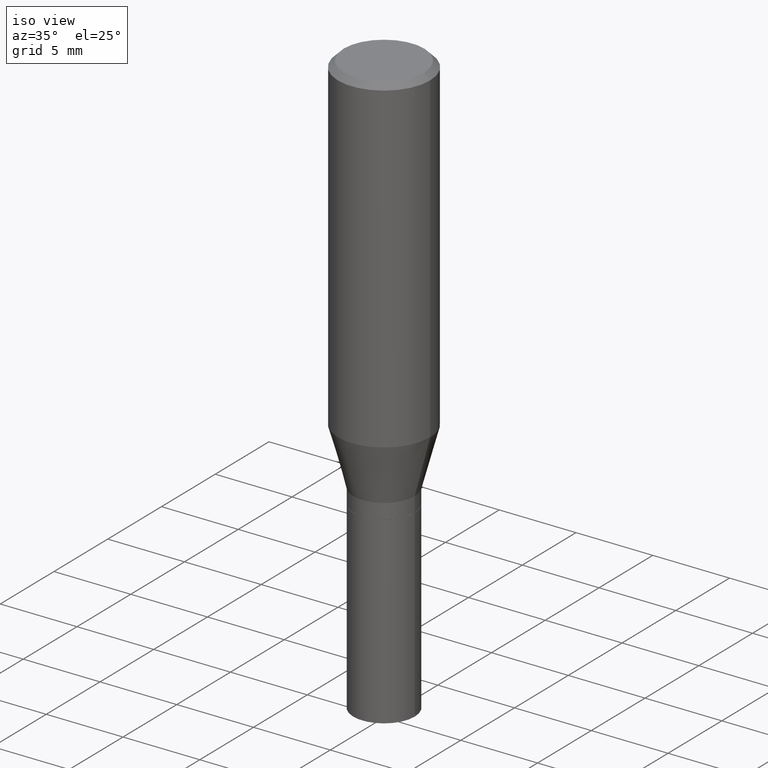
[diagram: clean part render]
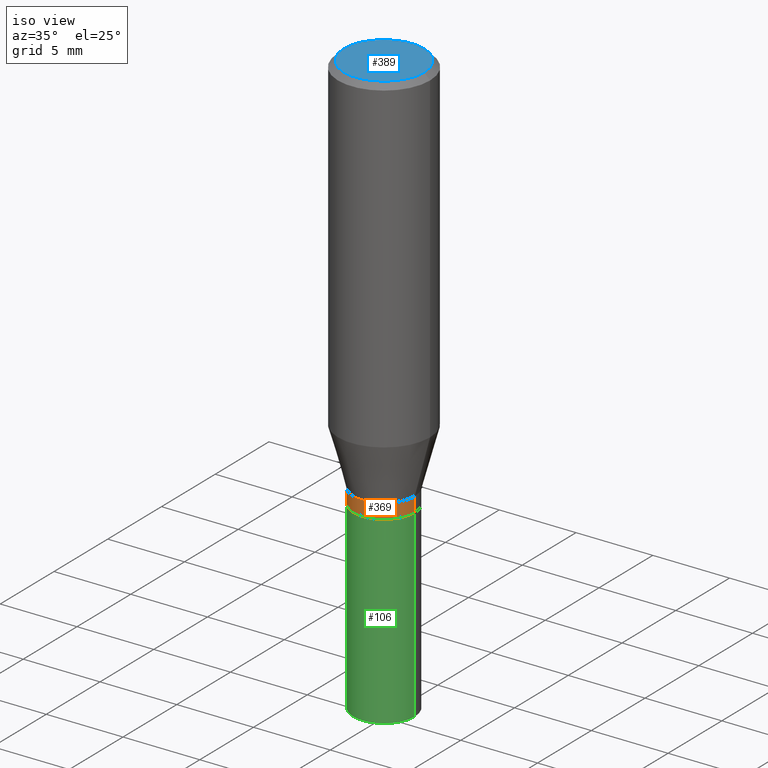
[diagram: same view with three faces highlighted in distinct colors, each labeled with its STEP entity id]
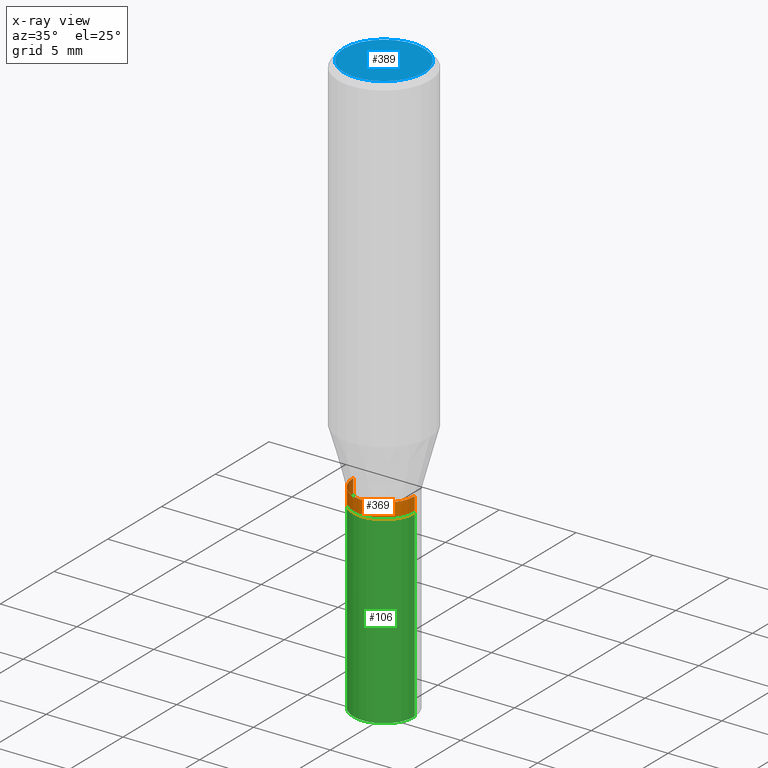
[diagram: x-ray of the same camera — body ghosted, the three highlighted faces saturated]
A machine part, iso view with three faces highlighted in distinct colors.
The next image is the same camera in x-ray (body ghosted, the three faces saturated) — at least one of them is partly hidden behind the body in this view.
Their STEP definitions:

[orange] entity #369 — the highlighted cylindrical surface (partial cylindrical patch) has radius 2.0003 mm, axis along (-0, 0, 1).
#10 = EDGE_CURVE ( 'NONE', #69, #327, #122, .T. ) ;
#38 = EDGE_CURVE ( 'NONE', #123, #271, #232, .T. ) ;
#49 = EDGE_LOOP ( 'NONE', ( #350, #160, #425, #60 ) ) ;
#55 = CARTESIAN_POINT ( 'NONE',  ( 2.511741010832753769E-29, -3.586100483125795415E-15, -1.027100000000000124 ) ) ;
#60 = ORIENTED_EDGE ( 'NONE', *, *, #78, .F. ) ;
#69 = VERTEX_POINT ( 'NONE', #94 ) ;
#76 = DIRECTION ( 'NONE',  ( -2.445468806185136597E-29, 3.491481338843145583E-15, 1.000000000000000000 ) ) ;
#78 = EDGE_CURVE ( 'NONE', #271, #327, #263, .T. ) ;
#94 = CARTESIAN_POINT ( 'NONE',  ( 0.07875000000000018097, -4.136008793993590338E-15, -1.027100000000000124 ) ) ;
#110 = CARTESIAN_POINT ( 'NONE',  ( -0.07875000000000016709, -2.497350516807997556E-15, -0.9889999999999999902 ) ) ;
#122 = LINE ( 'NONE', #296, #458 ) ;
#123 = VERTEX_POINT ( 'NONE', #308 ) ;
#127 = DIRECTION ( 'NONE',  ( -2.445468806185136597E-29, 3.491481338843145583E-15, 1.000000000000000000 ) ) ;
#145 = CIRCLE ( 'NONE', #304, 0.07875000000000018097 ) ;
#146 = CARTESIAN_POINT ( 'NONE',  ( 0.000000000000000000, 0.000000000000000000, 0.000000000000000000 ) ) ;
#152 = EDGE_CURVE ( 'NONE', #123, #69, #145, .T. ) ;
#160 = ORIENTED_EDGE ( 'NONE', *, *, #152, .T. ) ;
#164 = CARTESIAN_POINT ( 'NONE',  ( -0.07875000000000018097, 5.595524044110801822E-16, -3.873661383575747601E-30 ) ) ;
#196 = AXIS2_PLACEMENT_3D ( 'NONE', #146, #289, #353 ) ;
#228 = DIRECTION ( 'NONE',  ( -2.445468806185136877E-29, 3.491481338843145188E-15, 1.000000000000000000 ) ) ;
#232 = LINE ( 'NONE', #164, #318 ) ;
#250 = CARTESIAN_POINT ( 'NONE',  ( 0.07875000000000016709, -4.002983354983665455E-15, -0.9889999999999999902 ) ) ;
#263 = CIRCLE ( 'NONE', #331, 0.07875000000000016709 ) ;
#271 = VERTEX_POINT ( 'NONE', #110 ) ;
#289 = DIRECTION ( 'NONE',  ( -2.445468806185136597E-29, 3.491481338843145583E-15, 1.000000000000000000 ) ) ;
#296 = CARTESIAN_POINT ( 'NONE',  ( 0.07875000000000018097, -5.499083108677948248E-16, 3.839989210939308826E-30 ) ) ;
#304 = AXIS2_PLACEMENT_3D ( 'NONE', #55, #127, #410 ) ;
#308 = CARTESIAN_POINT ( 'NONE',  ( -0.07875000000000018097, -3.026548078714715430E-15, -1.027100000000000124 ) ) ;
#318 = VECTOR ( 'NONE', #411, 39.37007874015748143 ) ;
#324 = DIRECTION ( 'NONE',  ( 1.000000000000000000, -6.982962677686265922E-15, 0.000000000000000000 ) ) ;
#327 = VERTEX_POINT ( 'NONE', #250 ) ;
#331 = AXIS2_PLACEMENT_3D ( 'NONE', #337, #76, #324 ) ;
#337 = CARTESIAN_POINT ( 'NONE',  ( 2.418568649317100009E-29, -3.453075044115871321E-15, -0.9889999999999999902 ) ) ;
#350 = ORIENTED_EDGE ( 'NONE', *, *, #38, .F. ) ;
#353 = DIRECTION ( 'NONE',  ( 1.000000000000000000, -6.982962677686267499E-15, 4.876176775795936353E-29 ) ) ;
#369 = ADVANCED_FACE ( 'NONE', ( #390 ), #422, .T. ) ;
#390 = FACE_OUTER_BOUND ( 'NONE', #49, .T. ) ;
#410 = DIRECTION ( 'NONE',  ( 1.000000000000000000, -6.982962677686265133E-15, 0.000000000000000000 ) ) ;
#411 = DIRECTION ( 'NONE',  ( -2.445468806185136877E-29, 3.491481338843145188E-15, 1.000000000000000000 ) ) ;
#422 = CYLINDRICAL_SURFACE ( 'NONE', #196, 0.07875000000000018097 ) ;
#425 = ORIENTED_EDGE ( 'NONE', *, *, #10, .T. ) ;
#458 = VECTOR ( 'NONE', #228, 39.37007874015748143 ) ;

[blue] entity #389 — the highlighted planar face has unit normal (0, -0, -1).
#54 = AXIS2_PLACEMENT_3D ( 'NONE', #418, #102, #272 ) ;
#79 = CARTESIAN_POINT ( 'NONE',  ( 7.199434520694539070E-16, 0.1030999999999999833, -2.799333564565821924E-16 ) ) ;
#102 = DIRECTION ( 'NONE',  ( -2.445468806185136597E-29, 3.491481338843145583E-15, 1.000000000000000000 ) ) ;
#107 = PLANE ( 'NONE',  #203 ) ;
#109 = ORIENTED_EDGE ( 'NONE', *, *, #227, .T. ) ;
#113 = VERTEX_POINT ( 'NONE', #307 ) ;
#125 = CIRCLE ( 'NONE', #175, 0.1030999999999999833 ) ;
#132 = DIRECTION ( 'NONE',  ( -2.445468806185136597E-29, 3.491481338843145583E-15, 1.000000000000000000 ) ) ;
#175 = AXIS2_PLACEMENT_3D ( 'NONE', #451, #132, #239 ) ;
#203 = AXIS2_PLACEMENT_3D ( 'NONE', #79, #359, #245 ) ;
#227 = EDGE_CURVE ( 'NONE', #284, #113, #257, .T. ) ;
#230 = EDGE_CURVE ( 'NONE', #113, #284, #125, .T. ) ;
#239 = DIRECTION ( 'NONE',  ( 1.000000000000000000, -6.982962677686268288E-15, 4.883331232093010009E-29 ) ) ;
#245 = DIRECTION ( 'NONE',  ( -1.000000000000000000, 6.982962677686265922E-15, -4.876176775795935793E-29 ) ) ;
#257 = CIRCLE ( 'NONE', #54, 0.1030999999999999833 ) ;
#272 = DIRECTION ( 'NONE',  ( 1.000000000000000000, -6.982962677686268288E-15, 4.883331232093010009E-29 ) ) ;
#284 = VERTEX_POINT ( 'NONE', #358 ) ;
#307 = CARTESIAN_POINT ( 'NONE',  ( -0.1030999999999999833, 7.461295621107778410E-16, 1.600767391562869831E-16 ) ) ;
#330 = ORIENTED_EDGE ( 'NONE', *, *, #230, .T. ) ;
#333 = EDGE_LOOP ( 'NONE', ( #330, #109 ) ) ;
#358 = CARTESIAN_POINT ( 'NONE',  ( 0.1030999999999999833, -7.849571885948545803E-16, 1.600767391562973369E-16 ) ) ;
#359 = DIRECTION ( 'NONE',  ( 2.438088387897960049E-29, -3.491481338843145188E-15, -1.000000000000000000 ) ) ;
#389 = ADVANCED_FACE ( 'NONE', ( #395 ), #107, .F. ) ;
#395 = FACE_OUTER_BOUND ( 'NONE', #333, .T. ) ;
#418 = CARTESIAN_POINT ( 'NONE',  ( -3.914626722025471411E-45, 5.589049475470557669E-31, 1.600767391562921107E-16 ) ) ;
#451 = CARTESIAN_POINT ( 'NONE',  ( -3.914626722025471411E-45, 5.589049475470557669E-31, 1.600767391562921107E-16 ) ) ;

[green] entity #106 — the highlighted cylindrical surface (partial cylindrical patch) has radius 2.0002 mm, axis along (-0, 0, 1).
#11 = VERTEX_POINT ( 'NONE', #275 ) ;
#12 = VECTOR ( 'NONE', #373, 39.37007874015748143 ) ;
#19 = EDGE_CURVE ( 'NONE', #63, #119, #449, .T. ) ;
#23 = EDGE_CURVE ( 'NONE', #63, #312, #456, .T. ) ;
#26 = DIRECTION ( 'NONE',  ( -2.445468806185136597E-29, 3.491481338843145583E-15, 1.000000000000000000 ) ) ;
#43 = EDGE_CURVE ( 'NONE', #312, #11, #195, .T. ) ;
#62 = CARTESIAN_POINT ( 'NONE',  ( -0.07875000000000000056, 5.595524044110789003E-16, -3.873661383575737792E-30 ) ) ;
#63 = VERTEX_POINT ( 'NONE', #280 ) ;
#65 = AXIS2_PLACEMENT_3D ( 'NONE', #381, #446, #207 ) ;
#82 = DIRECTION ( 'NONE',  ( 1.000000000000000000, -6.982962677686268288E-15, 0.000000000000000000 ) ) ;
#106 = ADVANCED_FACE ( 'NONE', ( #206 ), #236, .T. ) ;
#119 = VERTEX_POINT ( 'NONE', #235 ) ;
#148 = EDGE_CURVE ( 'NONE', #119, #11, #380, .T. ) ;
#181 = ORIENTED_EDGE ( 'NONE', *, *, #43, .F. ) ;
#184 = ORIENTED_EDGE ( 'NONE', *, *, #19, .T. ) ;
#195 = CIRCLE ( 'NONE', #256, 0.07875000000000000056 ) ;
#200 = EDGE_LOOP ( 'NONE', ( #431, #184, #301, #181 ) ) ;
#206 = FACE_OUTER_BOUND ( 'NONE', #200, .T. ) ;
#207 = DIRECTION ( 'NONE',  ( 1.000000000000000000, -6.982962677686261977E-15, 0.000000000000000000 ) ) ;
#235 = CARTESIAN_POINT ( 'NONE',  ( 0.07875000000000000056, -5.787130319132511522E-15, -1.500000000000000222 ) ) ;
#236 = CYLINDRICAL_SURFACE ( 'NONE', #344, 0.07875000000000000056 ) ;
#243 = CARTESIAN_POINT ( 'NONE',  ( 0.07875000000000000056, -5.499083108677934443E-16, 3.839989210939299016E-30 ) ) ;
#255 = DIRECTION ( 'NONE',  ( -2.445468806185136597E-29, 3.491481338843145583E-15, 1.000000000000000000 ) ) ;
#256 = AXIS2_PLACEMENT_3D ( 'NONE', #399, #255, #82 ) ;
#274 = CARTESIAN_POINT ( 'NONE',  ( 0.000000000000000000, 0.000000000000000000, 0.000000000000000000 ) ) ;
#275 = CARTESIAN_POINT ( 'NONE',  ( 0.07875000000000000056, -4.137754534663010264E-15, -1.027600000000000069 ) ) ;
#280 = CARTESIAN_POINT ( 'NONE',  ( -0.07875000000000000056, -3.852981711618889535E-15, -1.500000000000000222 ) ) ;
#301 = ORIENTED_EDGE ( 'NONE', *, *, #148, .T. ) ;
#312 = VERTEX_POINT ( 'NONE', #321 ) ;
#321 = CARTESIAN_POINT ( 'NONE',  ( -0.07875000000000000056, -3.852981711618889535E-15, -1.027600000000000069 ) ) ;
#344 = AXIS2_PLACEMENT_3D ( 'NONE', #274, #26, #415 ) ;
#373 = DIRECTION ( 'NONE',  ( -2.445468806185136877E-29, 3.491481338843145188E-15, 1.000000000000000000 ) ) ;
#380 = LINE ( 'NONE', #243, #412 ) ;
#381 = CARTESIAN_POINT ( 'NONE',  ( 3.668203209277704895E-29, -5.237222008264718177E-15, -1.500000000000000222 ) ) ;
#399 = CARTESIAN_POINT ( 'NONE',  ( 2.512963745235846570E-29, -3.587846223795216918E-15, -1.027600000000000069 ) ) ;
#412 = VECTOR ( 'NONE', #445, 39.37007874015748143 ) ;
#415 = DIRECTION ( 'NONE',  ( 1.000000000000000000, -6.982962677686265922E-15, 4.876176775795935232E-29 ) ) ;
#431 = ORIENTED_EDGE ( 'NONE', *, *, #23, .F. ) ;
#445 = DIRECTION ( 'NONE',  ( -2.445468806185136877E-29, 3.491481338843145188E-15, 1.000000000000000000 ) ) ;
#446 = DIRECTION ( 'NONE',  ( -2.445468806185136597E-29, 3.491481338843145583E-15, 1.000000000000000000 ) ) ;
#449 = CIRCLE ( 'NONE', #65, 0.07875000000000000056 ) ;
#456 = LINE ( 'NONE', #62, #12 ) ;